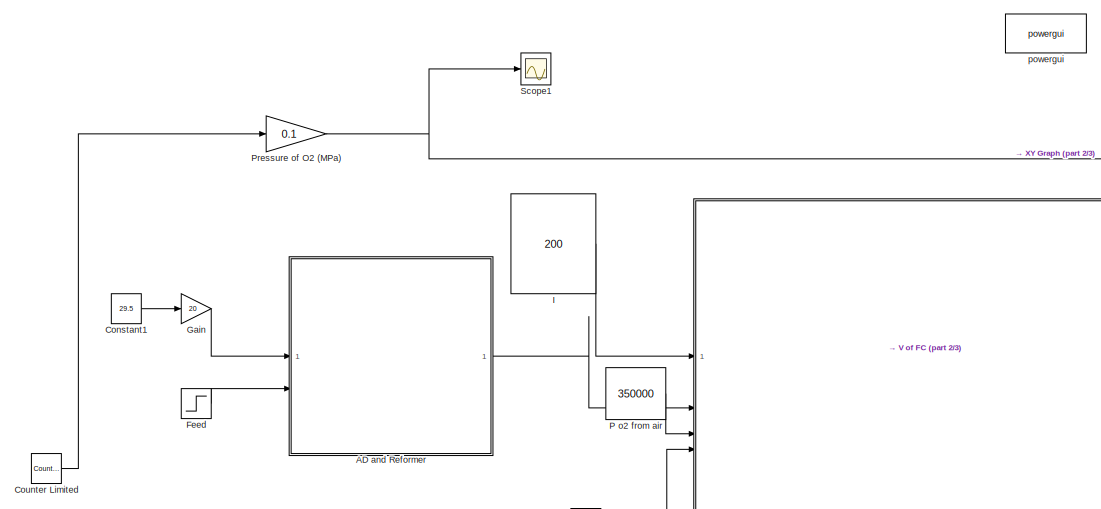
[diagram: root canvas - part 1/3, left side, full height]
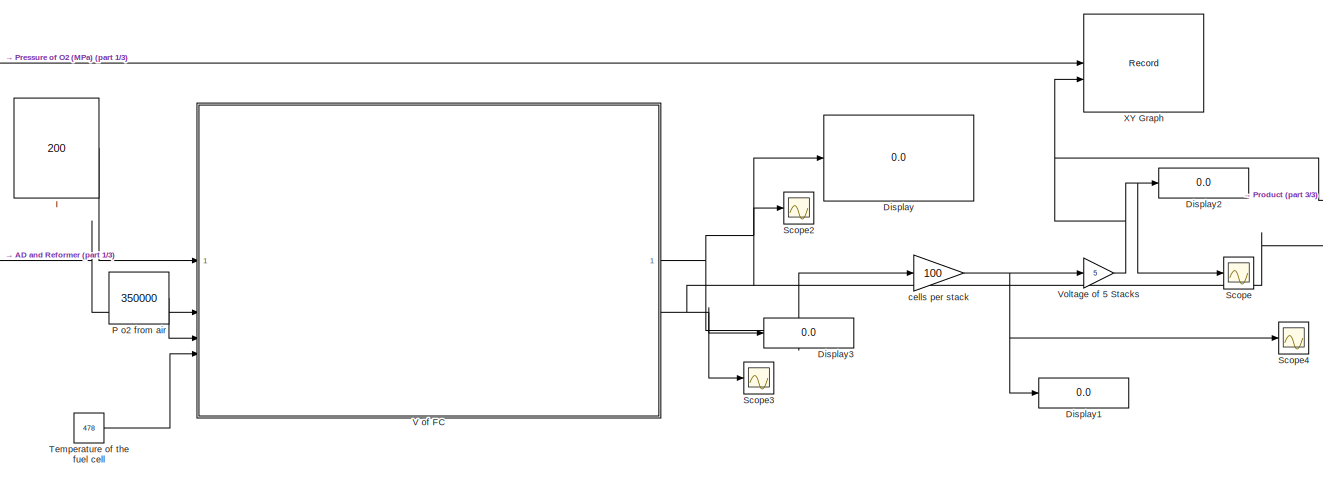
[diagram: root canvas - part 2/3, center side, full height]
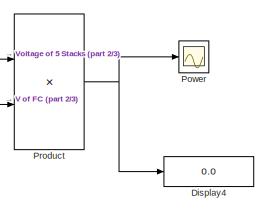
[diagram: root canvas - part 3/3, middle right region]
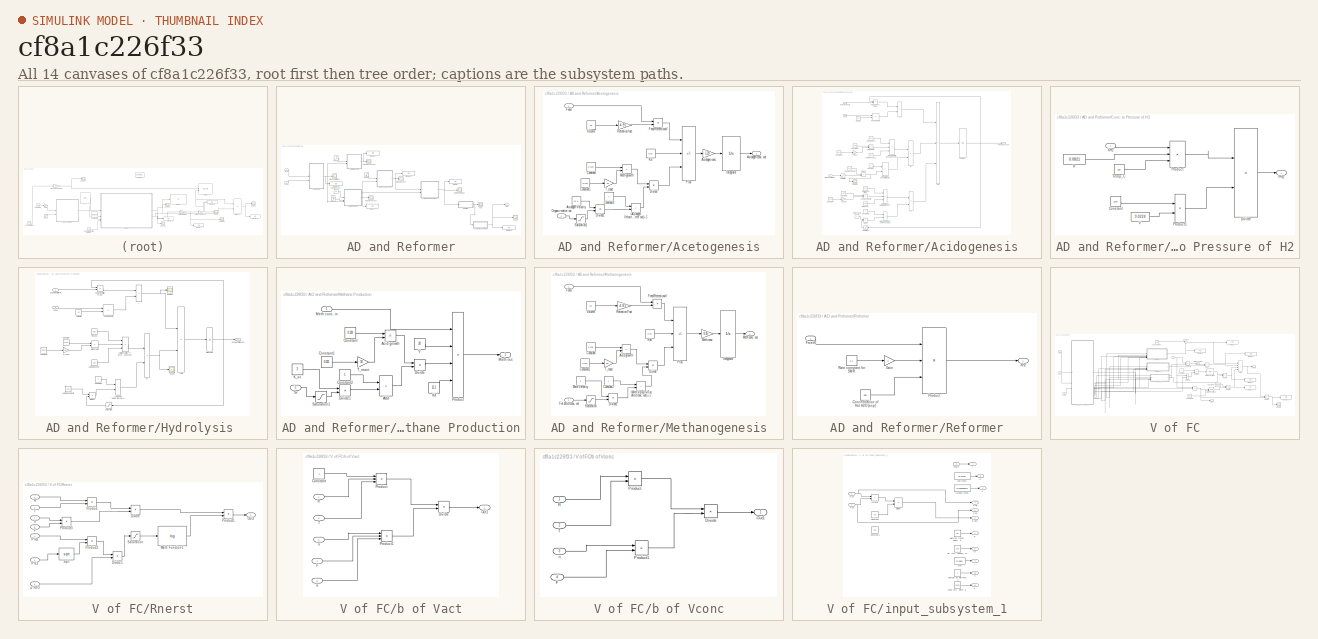
[diagram: thumbnail index - all 14 canvases of the model, root first then tree order]
MODEL slx_cf8a1c226f33
KIND model
CONFIG AbsTol = auto
CONFIG EnableMultiTasking = off
CONFIG FixedStep = auto
CONFIG MaxStep = auto
CONFIG MinStep = auto
CONFIG RelTol = 1e-3
CONFIG SampleTimeConstraint = Unconstrained
CONFIG SolverName = VariableStepAuto
CONFIG StartTime = 0.0
CONFIG StopTime = 10
BLOCK [SubSystem] AD and Reformer
BLOCK [SubSystem] AD and Reformer/Acetogenesis
BLOCK [Sum] AD and Reformer/Acetogenesis/(Acidogen Velocity//Organic matter out)+1
  IconShape = rectangular
BLOCK [Constant] AD and Reformer/Acetogenesis/Acidogen Velocity
  Value = 21.5
BLOCK [Gain] AD and Reformer/Acetogenesis/Acidogen conc.
  Gain = 1.20
BLOCK [Outport] AD and Reformer/Acetogenesis/Acidogen conc. out
BLOCK [Constant] AD and Reformer/Acetogenesis/Constant
  Value = 0.129
BLOCK [Constant] AD and Reformer/Acetogenesis/Constant1
  Value = 0.013
BLOCK [Constant] AD and Reformer/Acetogenesis/Constant2
BLOCK [Product] AD and Reformer/Acetogenesis/Divide
  Inputs = */
BLOCK [Product] AD and Reformer/Acetogenesis/Divide1
  Inputs = */
BLOCK [Inport] AD and Reformer/Acetogenesis/Feed
BLOCK [Product] AD and Reformer/Acetogenesis/Feed//RetentionxV
  Inputs = */
BLOCK [Integrator] AD and Reformer/Acetogenesis/Integrator
BLOCK [Constant] AD and Reformer/Acetogenesis/Kd
  Value = 0.02
BLOCK [Sum] AD and Reformer/Acetogenesis/Meth growth
  IconShape = rectangular
  Inputs = -+
BLOCK [Inport] AD and Reformer/Acetogenesis/Organic matter out
  Port = 2
BLOCK [Sum] AD and Reformer/Acetogenesis/Plus
  IconShape = rectangular
  Inputs = --+
BLOCK [Gain] AD and Reformer/Acetogenesis/Retention fact
  Gain = 4.91
BLOCK [Saturate] AD and Reformer/Acetogenesis/Saturation1
  LowerLimit = 0.3
  UpperLimit = 300
BLOCK [Gain] AD and Reformer/Acetogenesis/T_react
  Gain = 50
BLOCK [Constant] AD and Reformer/Acetogenesis/Volume
  Value = 20
BLOCK [Scope] AD and Reformer/Acidogen conc. out
  Floating = off
  NumInputPorts = 1
  ScopeSpecificationString = Simulink.scopes.TimeScopeBlockCfg('CurrentConfiguration', extmgr.ConfigurationSet(extmgr.Configuration('Core','General UI',true),extmgr.Configuration('Core','Source UI',true),extmgr.Configuration('Sources','WiredSimulink',true,'DataLoggingVariableName','ScopeData3'),extmgr.Configuration('Visuals','Time Domain',true,'SerializedDisplays',{struct('MinYLimReal','-0.50968','MaxYLimReal','4.42527','YLab...<+1415ch>
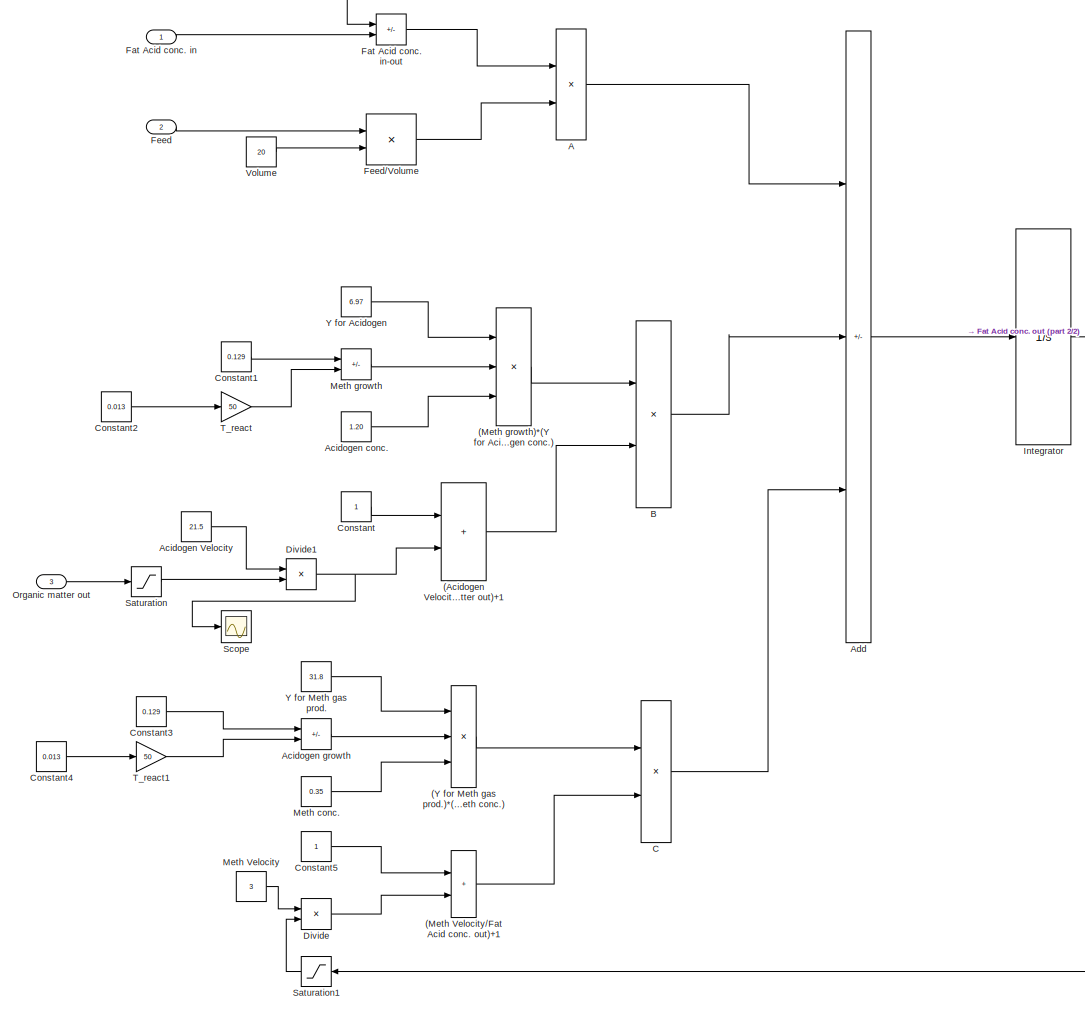
[diagram: AD and Reformer/Acidogenesis - part 1/2, most of the canvas]
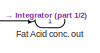
[diagram: AD and Reformer/Acidogenesis - part 2/2, middle right region]
BLOCK [SubSystem] AD and Reformer/Acidogenesis
BLOCK [Sum] AD and Reformer/Acidogenesis/(Acidogen Velocity//Organic matter out)+1
  IconShape = rectangular
BLOCK [Sum] AD and Reformer/Acidogenesis/(Meth Velocity//Fat Acid conc. out)+1
  IconShape = rectangular
BLOCK [Product] AD and Reformer/Acidogenesis/(Meth growth)*(Y for Acidogen)*(Acidogen conc.)
  Inputs = 3
BLOCK [Product] AD and Reformer/Acidogenesis/(Y for Meth gas prod.)*(Acid growth)*(Meth conc.)
  Inputs = 3
BLOCK [Product] AD and Reformer/Acidogenesis/A
BLOCK [Constant] AD and Reformer/Acidogenesis/Acidogen Velocity
  Value = 21.5
BLOCK [Constant] AD and Reformer/Acidogenesis/Acidogen conc.
  Value = 1.20
BLOCK [Sum] AD and Reformer/Acidogenesis/Acidogen growth
  IconShape = rectangular
  Inputs = -+
BLOCK [Sum] AD and Reformer/Acidogenesis/Add
  IconShape = rectangular
  Inputs = ++-
BLOCK [Product] AD and Reformer/Acidogenesis/B
  Inputs = */
BLOCK [Product] AD and Reformer/Acidogenesis/C
  Inputs = */
BLOCK [Constant] AD and Reformer/Acidogenesis/Constant
BLOCK [Constant] AD and Reformer/Acidogenesis/Constant1
  Value = 0.129
BLOCK [Constant] AD and Reformer/Acidogenesis/Constant2
  Value = 0.013
BLOCK [Constant] AD and Reformer/Acidogenesis/Constant3
  Value = 0.129
BLOCK [Constant] AD and Reformer/Acidogenesis/Constant4
  Value = 0.013
BLOCK [Constant] AD and Reformer/Acidogenesis/Constant5
BLOCK [Product] AD and Reformer/Acidogenesis/Divide
  Inputs = */
BLOCK [Product] AD and Reformer/Acidogenesis/Divide1
  Inputs = */
BLOCK [Inport] AD and Reformer/Acidogenesis/Fat Acid conc. in
BLOCK [Sum] AD and Reformer/Acidogenesis/Fat Acid conc. in-out
  IconShape = rectangular
  Inputs = -+
BLOCK [Outport] AD and Reformer/Acidogenesis/Fat Acid conc. out
BLOCK [Inport] AD and Reformer/Acidogenesis/Feed
  Port = 2
BLOCK [Product] AD and Reformer/Acidogenesis/Feed//Volume
  Inputs = */
BLOCK [Integrator] AD and Reformer/Acidogenesis/Integrator
BLOCK [Constant] AD and Reformer/Acidogenesis/Meth Velocity
  Value = 3
BLOCK [Constant] AD and Reformer/Acidogenesis/Meth conc.
  Value = 0.35
BLOCK [Sum] AD and Reformer/Acidogenesis/Meth growth
  IconShape = rectangular
  Inputs = -+
BLOCK [Inport] AD and Reformer/Acidogenesis/Organic matter out
  Port = 3
BLOCK [Saturate] AD and Reformer/Acidogenesis/Saturation
  LowerLimit = 0.002
  UpperLimit = 100
BLOCK [Saturate] AD and Reformer/Acidogenesis/Saturation1
  LowerLimit = 0.3
  UpperLimit = 300
BLOCK [Scope] AD and Reformer/Acidogenesis/Scope
  Floating = off
  NumInputPorts = 1
  ScopeSpecificationString = Simulink.scopes.TimeScopeBlockCfg('CurrentConfiguration', extmgr.ConfigurationSet(extmgr.Configuration('Core','General UI',true),extmgr.Configuration('Core','Source UI',true),extmgr.Configuration('Sources','WiredSimulink',true,'DataLoggingVariableName','ScopeData1'),extmgr.Configuration('Visuals','Time Domain',true,'SerializedDisplays',{struct('MinYLimReal','-1343.50812','MaxYLimReal','12093.72313...<+1392ch>
BLOCK [Gain] AD and Reformer/Acidogenesis/T_react
  Gain = 50
BLOCK [Gain] AD and Reformer/Acidogenesis/T_react1
  Gain = 50
BLOCK [Constant] AD and Reformer/Acidogenesis/Volume
  Value = 20
BLOCK [Constant] AD and Reformer/Acidogenesis/Y for Acidogen
  Value = 6.97
BLOCK [Constant] AD and Reformer/Acidogenesis/Y for Meth gas prod.
  Value = 31.8
BLOCK [SubSystem] AD and Reformer/Conc. to Pressure of H2
BLOCK [Constant] AD and Reformer/Conc. to Pressure of H2/Constant
  Value = 1000
BLOCK [Product] AD and Reformer/Conc. to Pressure of H2/Divide
  Inputs = */
BLOCK [Outport] AD and Reformer/Conc. to Pressure of H2/PH2
BLOCK [Product] AD and Reformer/Conc. to Pressure of H2/Product
  Inputs = 3
BLOCK [Product] AD and Reformer/Conc. to Pressure of H2/Product1
BLOCK [Constant] AD and Reformer/Conc. to Pressure of H2/R
  Value = 0.0821
BLOCK [Constant] AD and Reformer/Conc. to Pressure of H2/Temp_C
  Value = 380
BLOCK [Constant] AD and Reformer/Conc. to Pressure of H2/V
  Value = 0.0224
BLOCK [Inport] AD and Reformer/Conc. to Pressure of H2/XH2
BLOCK [Display] AD and Reformer/Display
  Decimation = 1
BLOCK [Display] AD and Reformer/Display1
  Decimation = 1
BLOCK [Display] AD and Reformer/Display2
  Decimation = 1
BLOCK [Display] AD and Reformer/Display3
  Decimation = 1
BLOCK [Display] AD and Reformer/Display4
  Decimation = 1
BLOCK [Display] AD and Reformer/Display5
  Decimation = 1
BLOCK [Scope] AD and Reformer/Fat Acid conc. out
  Floating = off
  NumInputPorts = 1
  ScopeSpecificationString = Simulink.scopes.TimeScopeBlockCfg('CurrentConfiguration', extmgr.ConfigurationSet(extmgr.Configuration('Core','General UI',true),extmgr.Configuration('Core','Source UI',true),extmgr.Configuration('Sources','WiredSimulink',true,'DataLoggingVariableName','ScopeData4'),extmgr.Configuration('Visuals','Time Domain',true,'SerializedDisplays',{struct('MinYLimReal','-1.15241','MaxYLimReal','4.98381','YLab...<+1421ch>
BLOCK [Constant] AD and Reformer/Fat Acids conc.
  Value = 2.91
BLOCK [Inport] AD and Reformer/Feed
  Port = 2
BLOCK [Step] AD and Reformer/Feed1
  SampleTime = 0
BLOCK [Step] AD and Reformer/Feed2
  SampleTime = 0
BLOCK [Step] AD and Reformer/Feed3
  SampleTime = 0
BLOCK [SubSystem] AD and Reformer/Hydrolysis 
BLOCK [Sum] AD and Reformer/Hydrolysis /(Acidogen Velocity//Organic matter out)+1
  IconShape = rectangular
BLOCK [Product] AD and Reformer/Hydrolysis /(Meth growth)*(Y for Hyd)*(Acidogen conc.)
  Inputs = 3
BLOCK [Product] AD and Reformer/Hydrolysis /A
BLOCK [Constant] AD and Reformer/Hydrolysis /Acidogen Velocity
  Value = 21.5
BLOCK [Constant] AD and Reformer/Hydrolysis /Acidogen conc.
  Value = 1.20
BLOCK [Sum] AD and Reformer/Hydrolysis /Add
  IconShape = rectangular
  Inputs = +-
BLOCK [Product] AD and Reformer/Hydrolysis /B
  Inputs = */
BLOCK [Constant] AD and Reformer/Hydrolysis /Constant
  Value = 0.129
BLOCK [Constant] AD and Reformer/Hydrolysis /Constant1
  Value = 0.013
BLOCK [Constant] AD and Reformer/Hydrolysis /Constant2
BLOCK [Product] AD and Reformer/Hydrolysis /Divide1
  Inputs = */
BLOCK [Inport] AD and Reformer/Hydrolysis /Feed
  Port = 2
BLOCK [Product] AD and Reformer/Hydrolysis /Feed//Volume
  Inputs = */
BLOCK [Integrator] AD and Reformer/Hydrolysis /Integrator
BLOCK [Sum] AD and Reformer/Hydrolysis /Meth growth
  IconShape = rectangular
  Inputs = -+
BLOCK [Inport] AD and Reformer/Hydrolysis /Organic Matter in
BLOCK [Sum] AD and Reformer/Hydrolysis /Organic matter in-out
  IconShape = rectangular
  Inputs = -+
BLOCK [Outport] AD and Reformer/Hydrolysis /Organic matter out
BLOCK [Saturate] AD and Reformer/Hydrolysis /Saturation
  LowerLimit = 0.3
  UpperLimit = 300
BLOCK [Scope] AD and Reformer/Hydrolysis /Scope
  Floating = off
  NumInputPorts = 1
  ScopeSpecificationString = Simulink.scopes.TimeScopeBlockCfg('CurrentConfiguration', extmgr.ConfigurationSet(extmgr.Configuration('Core','General UI',true),extmgr.Configuration('Core','Source UI',true),extmgr.Configuration('Sources','WiredSimulink',true,'DataLoggingVariableName','ScopeData3'),extmgr.Configuration('Visuals','Time Domain',true,'SerializedDisplays',{struct('MinYLimReal','-0.58078','MaxYLimReal','6.0581','YLabe...<+1356ch>
BLOCK [Scope] AD and Reformer/Hydrolysis /Scope1
  Floating = off
  NumInputPorts = 1
  ScopeSpecificationString = Simulink.scopes.TimeScopeBlockCfg('CurrentConfiguration', extmgr.ConfigurationSet(extmgr.Configuration('Core','General UI',true),extmgr.Configuration('Core','Source UI',true),extmgr.Configuration('Sources','WiredSimulink',true,'DataLoggingVariableName','ScopeData4'),extmgr.Configuration('Visuals','Time Domain',true,'SerializedDisplays',{struct('MinYLimReal','-3.68802','MaxYLimReal','33.19218','YLa...<+1364ch>
BLOCK [Gain] AD and Reformer/Hydrolysis /T_react
  Gain = 50
BLOCK [Constant] AD and Reformer/Hydrolysis /Volume
  Value = 20
BLOCK [Constant] AD and Reformer/Hydrolysis /Y for Hyd
  Value = 9.66
BLOCK [Scope] AD and Reformer/Meth conc. out
  Floating = off
  NumInputPorts = 1
  ScopeSpecificationString = Simulink.scopes.TimeScopeBlockCfg('CurrentConfiguration', extmgr.ConfigurationSet(extmgr.Configuration('Core','General UI',true),extmgr.Configuration('Core','Source UI',true),extmgr.Configuration('Sources','WiredSimulink',true,'DataLoggingVariableName','ScopeData5'),extmgr.Configuration('Visuals','Time Domain',true,'SerializedDisplays',{struct('MinYLimReal','-0.08379','MaxYLimReal','0.75413','YLab...<+1421ch>
BLOCK [SubSystem] AD and Reformer/Methane Production
BLOCK [Sum] AD and Reformer/Methane Production/Acid growth
  IconShape = rectangular
  Inputs = -+
BLOCK [Sum] AD and Reformer/Methane Production/Add
  IconShape = rectangular
BLOCK [Constant] AD and Reformer/Methane Production/Constant
  Value = 0.129
BLOCK [Constant] AD and Reformer/Methane Production/Constant1
  Value = 0.013
BLOCK [Constant] AD and Reformer/Methane Production/Constant2
BLOCK [Product] AD and Reformer/Methane Production/Divide
  Inputs = */
BLOCK [Product] AD and Reformer/Methane Production/Divide1
  Inputs = */
BLOCK [Constant] AD and Reformer/Methane Production/K4
  Value = 15.1
BLOCK [Constant] AD and Reformer/Methane Production/K_sc
  Value = 3
BLOCK [Inport] AD and Reformer/Methane Production/Meth conc. in
BLOCK [Outport] AD and Reformer/Methane Production/Meth out
BLOCK [Product] AD and Reformer/Methane Production/Product
  Inputs = 4
BLOCK [Saturate] AD and Reformer/Methane Production/Saturation1
  LowerLimit = 0.3
  UpperLimit = 100
BLOCK [Inport] AD and Reformer/Methane Production/Sv
  Port = 2
BLOCK [Gain] AD and Reformer/Methane Production/T_react
  Gain = 50
BLOCK [Constant] AD and Reformer/Methane Production/V
  Value = 20
BLOCK [Scope] AD and Reformer/Methane output
  Floating = off
  NumInputPorts = 1
  ScopeSpecificationString = Simulink.scopes.TimeScopeBlockCfg('CurrentConfiguration', extmgr.ConfigurationSet(extmgr.Configuration('Core','General UI',true),extmgr.Configuration('Core','Source UI',true),extmgr.Configuration('Sources','WiredSimulink',true,'DataLoggingVariableName','ScopeData6'),extmgr.Configuration('Visuals','Time Domain',true,'SerializedDisplays',{struct('MinYLimReal','-7.8175','MaxYLimReal','70.35749','YLab...<+1411ch>
BLOCK [SubSystem] AD and Reformer/Methanogenesis
BLOCK [Sum] AD and Reformer/Methanogenesis/(Meth Velocity//Fat Acid conc. out)+1
  IconShape = rectangular
BLOCK [Sum] AD and Reformer/Methanogenesis/Acid growth
  IconShape = rectangular
  Inputs = -+
BLOCK [Constant] AD and Reformer/Methanogenesis/Constant
  Value = 0.129
BLOCK [Constant] AD and Reformer/Methanogenesis/Constant1
  Value = 0.013
BLOCK [Constant] AD and Reformer/Methanogenesis/Constant2
BLOCK [Product] AD and Reformer/Methanogenesis/Divide
  Inputs = */
BLOCK [Product] AD and Reformer/Methanogenesis/Divide1
  Inputs = */
BLOCK [Inport] AD and Reformer/Methanogenesis/Fat Acid conc. out
  Port = 2
BLOCK [Inport] AD and Reformer/Methanogenesis/Feed
BLOCK [Product] AD and Reformer/Methanogenesis/Feed//RetentionxV 
  Inputs = */
BLOCK [Integrator] AD and Reformer/Methanogenesis/Integrator
BLOCK [Constant] AD and Reformer/Methanogenesis/Kdc
  Value = 0.02
BLOCK [Constant] AD and Reformer/Methanogenesis/Meth Velocity
  Value = 3
BLOCK [Gain] AD and Reformer/Methanogenesis/Meth conc.
  Gain = 0.35
BLOCK [Outport] AD and Reformer/Methanogenesis/Meth conc. out
BLOCK [Sum] AD and Reformer/Methanogenesis/Plus
  IconShape = rectangular
  Inputs = --+
BLOCK [Gain] AD and Reformer/Methanogenesis/Retention Fact
  Gain = 4.91
BLOCK [Saturate] AD and Reformer/Methanogenesis/Saturation
  LowerLimit = 0.3
  UpperLimit = 300
BLOCK [Gain] AD and Reformer/Methanogenesis/T_react
  Gain = 50
BLOCK [Constant] AD and Reformer/Methanogenesis/Volume
  Value = 20
BLOCK [Scope] AD and Reformer/Organic matter out
  Floating = off
  NumInputPorts = 1
  ScopeSpecificationString = Simulink.scopes.TimeScopeBlockCfg('CurrentConfiguration', extmgr.ConfigurationSet(extmgr.Configuration('Core','General UI',true),extmgr.Configuration('Core','Source UI',true),extmgr.Configuration('Sources','WiredSimulink',true,'DataLoggingVariableName','ScopeData7'),extmgr.Configuration('Visuals','Time Domain',true,'SerializedDisplays',{struct('MinYLimReal','-22.56187','MaxYLimReal','202.2257','YL...<+1432ch>
BLOCK [Outport] AD and Reformer/PH2
BLOCK [Scope] AD and Reformer/PH_2
  Floating = off
  NumInputPorts = 1
  ScopeSpecificationString = Simulink.scopes.TimeScopeBlockCfg('CurrentConfiguration', extmgr.ConfigurationSet(extmgr.Configuration('Core','General UI',true),extmgr.Configuration('Core','Source UI',true),extmgr.Configuration('Sources','WiredSimulink',true,'DataLoggingVariableName','ScopeData2'),extmgr.Configuration('Visuals','Time Domain',true,'SerializedDisplays',{struct('MinYLimReal','-67222.26916','MaxYLimReal','605000.422...<+1412ch>
BLOCK [SubSystem] AD and Reformer/Reformer
BLOCK [Constant] AD and Reformer/Reformer/Concentration of Hot H2O (exp)
  Value = 980
BLOCK [Inport] AD and Reformer/Reformer/Fmeth
BLOCK [Gain] AD and Reformer/Reformer/Gain
  Gain = 3
BLOCK [Product] AD and Reformer/Reformer/Product
  Inputs = 3
BLOCK [Constant] AD and Reformer/Reformer/Rate constant for SMR
  Value = 2.1
BLOCK [Outport] AD and Reformer/Reformer/XH2
BLOCK [Inport] AD and Reformer/Sb_in
BLOCK [Scope] AD and Reformer/XH2
  Floating = off
  NumInputPorts = 1
  ScopeSpecificationString = Simulink.scopes.TimeScopeBlockCfg('CurrentConfiguration', extmgr.ConfigurationSet(extmgr.Configuration('Core','General UI',true),extmgr.Configuration('Core','Source UI',true),extmgr.Configuration('Sources','WiredSimulink',true,'DataLoggingVariableName','ScopeData1'),extmgr.Configuration('Visuals','Time Domain',true),extmgr.Configuration('Tools','Plot Navigation',true),extmgr.Configuration('Tools',...<+40ch>
BLOCK [Constant] Constant1
  Value = 29.5
BLOCK [Reference] Counter Limited  REF=simulink/Sources/Counter
Limited
  SourceBlock = simulink/Sources/Counter\nLimited
  SourceType = Counter Limited
BLOCK [Display] Display
  Decimation = 1
  Format = long
BLOCK [Display] Display1
  Decimation = 1
BLOCK [Display] Display2
  Decimation = 1
BLOCK [Display] Display3
  Decimation = 1
BLOCK [Display] Display4
  Decimation = 1
BLOCK [Step] Feed
  SampleTime = 0
BLOCK [Gain] Gain
  Gain = 20
BLOCK [Constant] I
  Value = 200
BLOCK [Constant] P o2 from air
  Value = 350000
BLOCK [Scope] Power
  Floating = off
  NumInputPorts = 1
  ScopeSpecificationString = Simulink.scopes.TimeScopeBlockCfg('CurrentConfiguration', extmgr.ConfigurationSet(extmgr.Configuration('Core','General UI',true),extmgr.Configuration('Core','Source UI',true),extmgr.Configuration('Sources','WiredSimulink',true,'DataLoggingVariableName','ScopeData1'),extmgr.Configuration('Visuals','Time Domain',true,'SerializedDisplays',{struct('MinYLimReal','17227.57244','MaxYLimReal','23300.02678...<+1396ch>
BLOCK [Gain] Pressure of O2 (MPa)
  Gain = 0.1
BLOCK [Product] Product
BLOCK [Scope] Scope
  Floating = off
  NumInputPorts = 1
  ScopeSpecificationString = Simulink.scopes.TimeScopeBlockCfg('CurrentConfiguration', extmgr.ConfigurationSet(extmgr.Configuration('Core','General UI',true),extmgr.Configuration('Core','Source UI',true),extmgr.Configuration('Sources','WiredSimulink',true,'DataLoggingVariableName','ScopeData1'),extmgr.Configuration('Visuals','Time Domain',true,'SerializedDisplays',{struct('MinYLimReal','441.73263','MaxYLimReal','597.43658','Y...<+1392ch>
BLOCK [Scope] Scope1
  Floating = off
  NumInputPorts = 1
  ScopeSpecificationString = Simulink.scopes.TimeScopeBlockCfg('CurrentConfiguration', extmgr.ConfigurationSet(extmgr.Configuration('Core','General UI',true),extmgr.Configuration('Core','Source UI',true),extmgr.Configuration('Sources','WiredSimulink',true,'DataLoggingVariableName','ScopeData1'),extmgr.Configuration('Visuals','Time Domain',true,'SerializedDisplays',{struct('MinYLimReal','-0.62561','MaxYLimReal','5.63049','YLab...<+1379ch>
BLOCK [Scope] Scope2
  Floating = off
  NumInputPorts = 1
  ScopeSpecificationString = Simulink.scopes.TimeScopeBlockCfg('CurrentConfiguration', extmgr.ConfigurationSet(extmgr.Configuration('Core','General UI',true),extmgr.Configuration('Core','Source UI',true),extmgr.Configuration('Sources','WiredSimulink',true,'DataLoggingVariableName','ScopeData2'),extmgr.Configuration('Visuals','Time Domain',true,'SerializedDisplays',{struct('MinYLimReal','0.88347','MaxYLimReal','1.19487','YLabe...<+1366ch>
BLOCK [Scope] Scope3
  Floating = off
  NumInputPorts = 1
  ScopeSpecificationString = Simulink.scopes.TimeScopeBlockCfg('CurrentConfiguration', extmgr.ConfigurationSet(extmgr.Configuration('Core','General UI',true),extmgr.Configuration('Core','Source UI',true),extmgr.Configuration('Sources','WiredSimulink',true,'DataLoggingVariableName','ScopeData3'),extmgr.Configuration('Visuals','Time Domain',true,'SerializedDisplays',{struct('MinYLimReal','29.00000','MaxYLimReal','49.00000','YLa...<+1409ch>
BLOCK [Scope] Scope4
  Floating = off
  NumInputPorts = 1
  ScopeSpecificationString = Simulink.scopes.TimeScopeBlockCfg('CurrentConfiguration', extmgr.ConfigurationSet(extmgr.Configuration('Core','General UI',true),extmgr.Configuration('Core','Source UI',true),extmgr.Configuration('Sources','WiredSimulink',true,'DataLoggingVariableName','ScopeData4'),extmgr.Configuration('Visuals','Time Domain',true,'SerializedDisplays',{struct('MinYLimReal','88.34653','MaxYLimReal','119.48732','YL...<+1384ch>
BLOCK [Constant] Temperature of the fuel cell
  Value = 478
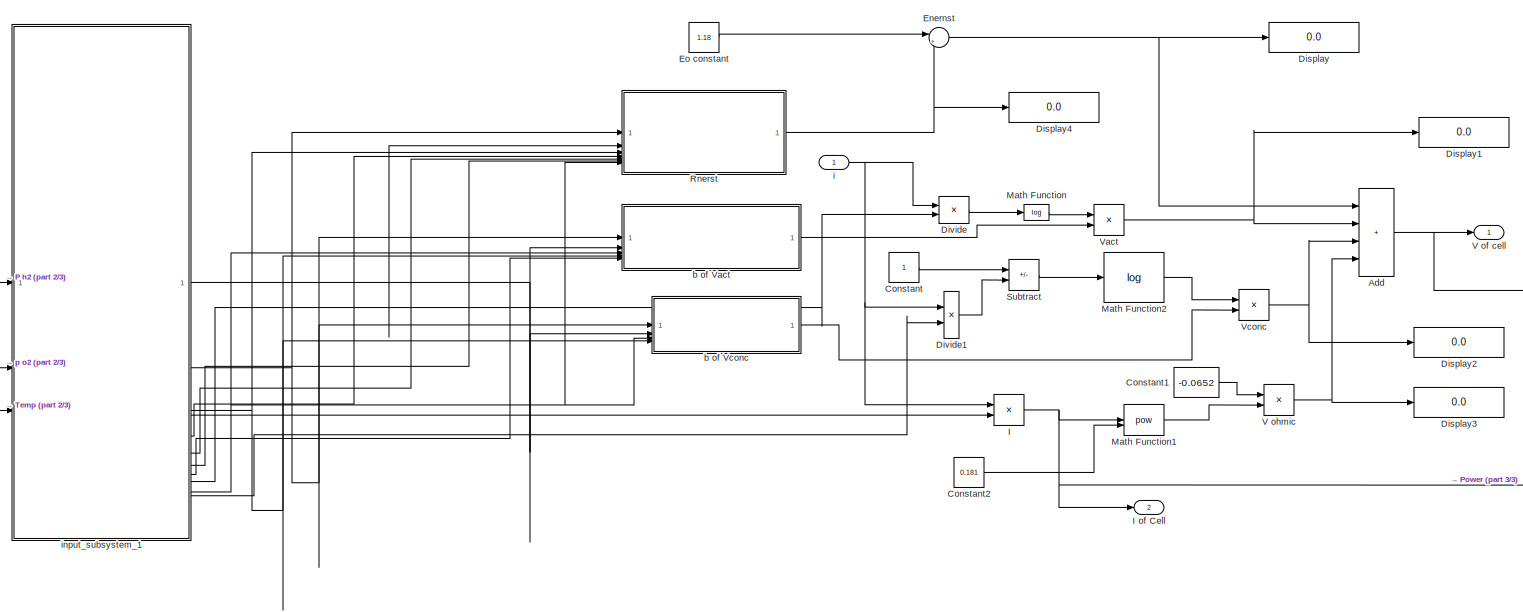
[diagram: V of FC - part 1/3, most of the canvas]
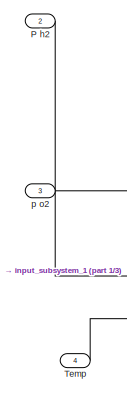
[diagram: V of FC - part 2/3, middle left region]
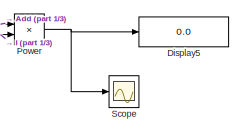
[diagram: V of FC - part 3/3, bottom right region]
BLOCK [SubSystem] V of FC
BLOCK [Sum] V of FC/Add
  IconShape = rectangular
  Inputs = ++++
BLOCK [Constant] V of FC/Constant
BLOCK [Constant] V of FC/Constant1
  Value = -0.0652
BLOCK [Constant] V of FC/Constant2
  Value = 0.181
BLOCK [Display] V of FC/Display
  Decimation = 1
BLOCK [Display] V of FC/Display1
  Decimation = 1
BLOCK [Display] V of FC/Display2
  Decimation = 1
BLOCK [Display] V of FC/Display3
  Decimation = 1
BLOCK [Display] V of FC/Display4
  Decimation = 1
BLOCK [Display] V of FC/Display5
  Decimation = 1
BLOCK [Product] V of FC/Divide
  Inputs = */
BLOCK [Product] V of FC/Divide1
  Inputs = */
BLOCK [Sum] V of FC/Enernst
  Inputs = |++
  NameLocation = top
BLOCK [Constant] V of FC/Eo constant 
  Value = 1.18
BLOCK [Product] V of FC/I
BLOCK [Outport] V of FC/I of Cell
  Port = 2
BLOCK [Math] V of FC/Math Function
  Operator = log
BLOCK [Math] V of FC/Math Function1
  Operator = pow
BLOCK [Math] V of FC/Math Function2
  Operator = log
BLOCK [Inport] V of FC/P h2
  Port = 2
BLOCK [Product] V of FC/Power
BLOCK [SubSystem] V of FC/Rnerst
BLOCK [Product] V of FC/Rnerst/Divide
  Inputs = */
BLOCK [Product] V of FC/Rnerst/Divide1
  Inputs = */
BLOCK [Inport] V of FC/Rnerst/F
  Port = 3
BLOCK [Math] V of FC/Rnerst/Math Function1
  Operator = log
BLOCK [Outport] V of FC/Rnerst/Out2
BLOCK [Inport] V of FC/Rnerst/P H2
  Port = 4
BLOCK [Inport] V of FC/Rnerst/P o2
  Port = 5
BLOCK [Product] V of FC/Rnerst/Product
BLOCK [Product] V of FC/Rnerst/Product1
BLOCK [Product] V of FC/Rnerst/Product2
BLOCK [Product] V of FC/Rnerst/Product3
BLOCK [Inport] V of FC/Rnerst/R
BLOCK [Saturate] V of FC/Rnerst/Saturation
  LowerLimit = 0.005
  UpperLimit = 100000000
BLOCK [Sqrt] V of FC/Rnerst/Sqrt
BLOCK [Inport] V of FC/Rnerst/T
  Port = 2
BLOCK [Inport] V of FC/Rnerst/n
  Port = 7
BLOCK [Inport] V of FC/Rnerst/p H2O
  Port = 6
BLOCK [Scope] V of FC/Scope
  Floating = off
  NumInputPorts = 1
  ScopeSpecificationString = Simulink.scopes.TimeScopeBlockCfg('CurrentConfiguration', extmgr.ConfigurationSet(extmgr.Configuration('Core','General UI',true),extmgr.Configuration('Core','Source UI',true),extmgr.Configuration('Sources','WiredSimulink',true,'DataLoggingVariableName','ScopeData2'),extmgr.Configuration('Visuals','Time Domain',true),extmgr.Configuration('Tools','Plot Navigation',true),extmgr.Configuration('Tools',...<+58ch>
BLOCK [Sum] V of FC/Subtract
  IconShape = rectangular
  Inputs = +-
BLOCK [Inport] V of FC/Temp
  Port = 4
BLOCK [Outport] V of FC/V of cell
BLOCK [Product] V of FC/V ohmic
BLOCK [Product] V of FC/Vact
BLOCK [Product] V of FC/Vconc
BLOCK [SubSystem] V of FC/b of Vact
BLOCK [Constant] V of FC/b of Vact/Constant
  Value = -1
BLOCK [Product] V of FC/b of Vact/Divide
  Inputs = */
BLOCK [Inport] V of FC/b of Vact/F
  Port = 4
BLOCK [Outport] V of FC/b of Vact/Out1
BLOCK [Product] V of FC/b of Vact/Product
  Inputs = 3
BLOCK [Product] V of FC/b of Vact/Product1
  Inputs = 3
BLOCK [Inport] V of FC/b of Vact/R
BLOCK [Inport] V of FC/b of Vact/T
  Port = 2
BLOCK [Inport] V of FC/b of Vact/a
  Port = 5
BLOCK [Inport] V of FC/b of Vact/n
  Port = 3
BLOCK [SubSystem] V of FC/b of Vconc
BLOCK [Product] V of FC/b of Vconc/Divide
  Inputs = */
BLOCK [Inport] V of FC/b of Vconc/F
  Port = 4
BLOCK [Outport] V of FC/b of Vconc/Out1
BLOCK [Product] V of FC/b of Vconc/Product
BLOCK [Product] V of FC/b of Vconc/Product1
BLOCK [Inport] V of FC/b of Vconc/R
BLOCK [Inport] V of FC/b of Vconc/T
  Port = 2
BLOCK [Inport] V of FC/b of Vconc/n
  Port = 3
BLOCK [Inport] V of FC/i 
BLOCK [SubSystem] V of FC/input_subsystem_1
BLOCK [Outport] V of FC/input_subsystem_1/A
  Port = 9
BLOCK [Constant] V of FC/input_subsystem_1/Area
  Value = 0.1950
BLOCK [Constant] V of FC/input_subsystem_1/Constant
  Value = 2.5
BLOCK [Constant] V of FC/input_subsystem_1/Constant1
  Value = 0.5
BLOCK [Product] V of FC/input_subsystem_1/Divide
  Inputs = */
BLOCK [Constant] V of FC/input_subsystem_1/Ex. curr. density, i0
  Value = 100
BLOCK [Outport] V of FC/input_subsystem_1/F
  Port = 3
BLOCK [Outport] V of FC/input_subsystem_1/Io
  Port = 8
BLOCK [Constant] V of FC/input_subsystem_1/Limit curr. dens. iL
  Value = 3590
BLOCK [Constant] V of FC/input_subsystem_1/Number of eletrons, n
  Value = 2
BLOCK [Outport] V of FC/input_subsystem_1/P H2
  Port = 4
BLOCK [Outport] V of FC/input_subsystem_1/P o2
  Port = 5
BLOCK [Sum] V of FC/input_subsystem_1/P total
  IconShape = rectangular
BLOCK [Outport] V of FC/input_subsystem_1/R
  Port = 2
BLOCK [Outport] V of FC/input_subsystem_1/T
BLOCK [Inport] V of FC/input_subsystem_1/Temp
  Port = 3
BLOCK [Outport] V of FC/input_subsystem_1/a
  Port = 7
BLOCK [Constant] V of FC/input_subsystem_1/electron transf. coeff. a
  Value = 0.5
BLOCK [Constant] V of FC/input_subsystem_1/faraday const.
  Value = 9.648456e+4
BLOCK [Constant] V of FC/input_subsystem_1/gas const.
  Value = 8.31441
BLOCK [Outport] V of FC/input_subsystem_1/iL
  Port = 11
BLOCK [Outport] V of FC/input_subsystem_1/n
  Port = 10
BLOCK [Outport] V of FC/input_subsystem_1/p H2O
  Port = 6
BLOCK [Inport] V of FC/input_subsystem_1/p h2
BLOCK [Inport] V of FC/input_subsystem_1/p o2
  Port = 2
BLOCK [Inport] V of FC/p o2
  Port = 3
BLOCK [Gain] Voltage of 5 Stacks
  Gain = 5
BLOCK [Record] XY Graph
  CompatibilityTag = XY
  FileSettingsInternal = {"entries":[{"content":{"excelSettings":{"content":{},"type":"Streamout.ExcelSettings"}},"type":"Streamout.FileSettingStorage","uuid":"06980113-96f1-4b0c-a215-c6c45438d7ac"}],"packageUris":["http://schema.mathworks.com/mf0/streamout_blocks/R2020a"],"version":"1.0"}
  Layout = [1 1]
  SignalsInternal = {"entries":[{"content":{"signals":[{"content":{"blockPath":["FuelCell/XY Graph"],"dimensions":[1],"domain":"FuelCell/XY Graph","lineColor":"#a2142f","plots":[1],"port":1,"sid":[""],"signalID":456,"signalName":"Pressure of O2 (MPa)"},"type":"RecordBlkView.Signal","uuid":"e1d00316-961b-4916-b371-07965f440cbd"},{"content":{"blockPath":["FuelCell/XY Graph"],"dimensions":[1],"domain":"FuelCell/XY Graph...<+360ch>
  VisualizationBindings = {"xyplotplugin":{"info":[{"series":[{"bindingParametersList":[{"parameter":"X-Axis","signalID":456,"signalName":"Pressure of O2 (MPa)"},{"parameter":"Y-Axis","signalID":460,"signalName":"Voltage of 5 Stacks"}],"seriesID":32857}],"subplotID":1}]}}
BLOCK [Gain] cells per stack
  Gain = 100
BLOCK [Reference] powergui  REF=spspowerguiLib/powergui
  Priority = 1
  SourceBlock = spspowerguiLib/powergui
  SourceType = PSB option menu block
LINE AD and Reformer/Acetogenesis/(Acidogen Velocity//Organic matter out)+1:1 -> AD and Reformer/Acetogenesis/Divide:2
LINE AD and Reformer/Acetogenesis/Acidogen Velocity:1 -> AD and Reformer/Acetogenesis/Divide1:1
LINE AD and Reformer/Acetogenesis/Acidogen conc.:1 -> AD and Reformer/Acetogenesis/Integrator:1
LINE AD and Reformer/Acetogenesis/Constant1:1 -> AD and Reformer/Acetogenesis/T_react:1
LINE AD and Reformer/Acetogenesis/Constant2:1 -> AD and Reformer/Acetogenesis/(Acidogen Velocity//Organic matter out)+1:1
LINE AD and Reformer/Acetogenesis/Constant:1 -> AD and Reformer/Acetogenesis/Meth growth:1
LINE AD and Reformer/Acetogenesis/Divide1:1 -> AD and Reformer/Acetogenesis/(Acidogen Velocity//Organic matter out)+1:2
LINE AD and Reformer/Acetogenesis/Divide:1 -> AD and Reformer/Acetogenesis/Plus:3
LINE AD and Reformer/Acetogenesis/Feed//RetentionxV:1 -> AD and Reformer/Acetogenesis/Plus:1
LINE AD and Reformer/Acetogenesis/Feed:1 -> AD and Reformer/Acetogenesis/Feed//RetentionxV:1
LINE AD and Reformer/Acetogenesis/Integrator:1 -> AD and Reformer/Acetogenesis/Acidogen conc. out:1
LINE AD and Reformer/Acetogenesis/Kd:1 -> AD and Reformer/Acetogenesis/Plus:2
LINE AD and Reformer/Acetogenesis/Meth growth:1 -> AD and Reformer/Acetogenesis/Divide:1
LINE AD and Reformer/Acetogenesis/Organic matter out:1 -> AD and Reformer/Acetogenesis/Saturation1:1
LINE AD and Reformer/Acetogenesis/Plus:1 -> AD and Reformer/Acetogenesis/Acidogen conc.:1
LINE AD and Reformer/Acetogenesis/Retention fact:1 -> AD and Reformer/Acetogenesis/Feed//RetentionxV:2
LINE AD and Reformer/Acetogenesis/Saturation1:1 -> AD and Reformer/Acetogenesis/Divide1:2
LINE AD and Reformer/Acetogenesis/T_react:1 -> AD and Reformer/Acetogenesis/Meth growth:2
LINE AD and Reformer/Acetogenesis/Volume:1 -> AD and Reformer/Acetogenesis/Retention fact:1
NET AD and Reformer/Acetogenesis:1 -> AD and Reformer/Acidogen conc. out:1, AD and Reformer/Display1:1
LINE AD and Reformer/Acidogenesis/(Acidogen Velocity//Organic matter out)+1:1 -> AD and Reformer/Acidogenesis/B:2
LINE AD and Reformer/Acidogenesis/(Meth Velocity//Fat Acid conc. out)+1:1 -> AD and Reformer/Acidogenesis/C:2
LINE AD and Reformer/Acidogenesis/(Meth growth)*(Y for Acidogen)*(Acidogen conc.):1 -> AD and Reformer/Acidogenesis/B:1
LINE AD and Reformer/Acidogenesis/(Y for Meth gas prod.)*(Acid growth)*(Meth conc.):1 -> AD and Reformer/Acidogenesis/C:1
LINE AD and Reformer/Acidogenesis/A:1 -> AD and Reformer/Acidogenesis/Add:1
LINE AD and Reformer/Acidogenesis/Acidogen Velocity:1 -> AD and Reformer/Acidogenesis/Divide1:1
LINE AD and Reformer/Acidogenesis/Acidogen conc.:1 -> AD and Reformer/Acidogenesis/(Meth growth)*(Y for Acidogen)*(Acidogen conc.):3
LINE AD and Reformer/Acidogenesis/Acidogen growth:1 -> AD and Reformer/Acidogenesis/(Y for Meth gas prod.)*(Acid growth)*(Meth conc.):2
LINE AD and Reformer/Acidogenesis/Add:1 -> AD and Reformer/Acidogenesis/Integrator:1
LINE AD and Reformer/Acidogenesis/B:1 -> AD and Reformer/Acidogenesis/Add:2
LINE AD and Reformer/Acidogenesis/C:1 -> AD and Reformer/Acidogenesis/Add:3
LINE AD and Reformer/Acidogenesis/Constant1:1 -> AD and Reformer/Acidogenesis/Meth growth:1
LINE AD and Reformer/Acidogenesis/Constant2:1 -> AD and Reformer/Acidogenesis/T_react:1
LINE AD and Reformer/Acidogenesis/Constant3:1 -> AD and Reformer/Acidogenesis/Acidogen growth:1
LINE AD and Reformer/Acidogenesis/Constant4:1 -> AD and Reformer/Acidogenesis/T_react1:1
LINE AD and Reformer/Acidogenesis/Constant5:1 -> AD and Reformer/Acidogenesis/(Meth Velocity//Fat Acid conc. out)+1:1
LINE AD and Reformer/Acidogenesis/Constant:1 -> AD and Reformer/Acidogenesis/(Acidogen Velocity//Organic matter out)+1:1
NET AD and Reformer/Acidogenesis/Divide1:1 -> AD and Reformer/Acidogenesis/(Acidogen Velocity//Organic matter out)+1:2, AD and Reformer/Acidogenesis/Scope:1
LINE AD and Reformer/Acidogenesis/Divide:1 -> AD and Reformer/Acidogenesis/(Meth Velocity//Fat Acid conc. out)+1:2
LINE AD and Reformer/Acidogenesis/Fat Acid conc. in-out:1 -> AD and Reformer/Acidogenesis/A:1
LINE AD and Reformer/Acidogenesis/Fat Acid conc. in:1 -> AD and Reformer/Acidogenesis/Fat Acid conc. in-out:2
LINE AD and Reformer/Acidogenesis/Feed//Volume:1 -> AD and Reformer/Acidogenesis/A:2
LINE AD and Reformer/Acidogenesis/Feed:1 -> AD and Reformer/Acidogenesis/Feed//Volume:1
NET AD and Reformer/Acidogenesis/Integrator:1 -> AD and Reformer/Acidogenesis/Fat Acid conc. in-out:1, AD and Reformer/Acidogenesis/Fat Acid conc. out:1, AD and Reformer/Acidogenesis/Saturation1:1
LINE AD and Reformer/Acidogenesis/Meth Velocity:1 -> AD and Reformer/Acidogenesis/Divide:1
LINE AD and Reformer/Acidogenesis/Meth conc.:1 -> AD and Reformer/Acidogenesis/(Y for Meth gas prod.)*(Acid growth)*(Meth conc.):3
LINE AD and Reformer/Acidogenesis/Meth growth:1 -> AD and Reformer/Acidogenesis/(Meth growth)*(Y for Acidogen)*(Acidogen conc.):2
LINE AD and Reformer/Acidogenesis/Organic matter out:1 -> AD and Reformer/Acidogenesis/Saturation:1
LINE AD and Reformer/Acidogenesis/Saturation1:1 -> AD and Reformer/Acidogenesis/Divide:2
LINE AD and Reformer/Acidogenesis/Saturation:1 -> AD and Reformer/Acidogenesis/Divide1:2
LINE AD and Reformer/Acidogenesis/T_react1:1 -> AD and Reformer/Acidogenesis/Acidogen growth:2
LINE AD and Reformer/Acidogenesis/T_react:1 -> AD and Reformer/Acidogenesis/Meth growth:2
LINE AD and Reformer/Acidogenesis/Volume:1 -> AD and Reformer/Acidogenesis/Feed//Volume:2
LINE AD and Reformer/Acidogenesis/Y for Acidogen:1 -> AD and Reformer/Acidogenesis/(Meth growth)*(Y for Acidogen)*(Acidogen conc.):1
LINE AD and Reformer/Acidogenesis/Y for Meth gas prod.:1 -> AD and Reformer/Acidogenesis/(Y for Meth gas prod.)*(Acid growth)*(Meth conc.):1
NET AD and Reformer/Acidogenesis:1 -> AD and Reformer/Display4:1, AD and Reformer/Fat Acid conc. out:1, AD and Reformer/Methane Production:2, AD and Reformer/Methanogenesis:2
LINE AD and Reformer/Conc. to Pressure of H2/Constant:1 -> AD and Reformer/Conc. to Pressure of H2/Product1:1
LINE AD and Reformer/Conc. to Pressure of H2/Divide:1 -> AD and Reformer/Conc. to Pressure of H2/PH2:1
LINE AD and Reformer/Conc. to Pressure of H2/Product1:1 -> AD and Reformer/Conc. to Pressure of H2/Divide:2
LINE AD and Reformer/Conc. to Pressure of H2/Product:1 -> AD and Reformer/Conc. to Pressure of H2/Divide:1
LINE AD and Reformer/Conc. to Pressure of H2/R:1 -> AD and Reformer/Conc. to Pressure of H2/Product:2
LINE AD and Reformer/Conc. to Pressure of H2/Temp_C:1 -> AD and Reformer/Conc. to Pressure of H2/Product:3
LINE AD and Reformer/Conc. to Pressure of H2/V:1 -> AD and Reformer/Conc. to Pressure of H2/Product1:2
LINE AD and Reformer/Conc. to Pressure of H2/XH2:1 -> AD and Reformer/Conc. to Pressure of H2/Product:1
NET AD and Reformer/Conc. to Pressure of H2:1 -> AD and Reformer/Display2:1, AD and Reformer/PH2:1, AD and Reformer/PH_2:1
LINE AD and Reformer/Fat Acids conc.:1 -> AD and Reformer/Acidogenesis:1
LINE AD and Reformer/Feed1:1 -> AD and Reformer/Acidogenesis:2
LINE AD and Reformer/Feed2:1 -> AD and Reformer/Acetogenesis:1
LINE AD and Reformer/Feed3:1 -> AD and Reformer/Methanogenesis:1
LINE AD and Reformer/Feed:1 -> AD and Reformer/Hydrolysis :2
LINE AD and Reformer/Hydrolysis /(Acidogen Velocity//Organic matter out)+1:1 -> AD and Reformer/Hydrolysis /B:2
LINE AD and Reformer/Hydrolysis /(Meth growth)*(Y for Hyd)*(Acidogen conc.):1 -> AD and Reformer/Hydrolysis /B:1
NET AD and Reformer/Hydrolysis /A:1 -> AD and Reformer/Hydrolysis /Add:1, AD and Reformer/Hydrolysis /Scope1:1
LINE AD and Reformer/Hydrolysis /Acidogen Velocity:1 -> AD and Reformer/Hydrolysis /Divide1:1
LINE AD and Reformer/Hydrolysis /Acidogen conc.:1 -> AD and Reformer/Hydrolysis /(Meth growth)*(Y for Hyd)*(Acidogen conc.):3
LINE AD and Reformer/Hydrolysis /Add:1 -> AD and Reformer/Hydrolysis /Integrator:1
NET AD and Reformer/Hydrolysis /B:1 -> AD and Reformer/Hydrolysis /Add:2, AD and Reformer/Hydrolysis /Scope:1
LINE AD and Reformer/Hydrolysis /Constant1:1 -> AD and Reformer/Hydrolysis /T_react:1
LINE AD and Reformer/Hydrolysis /Constant2:1 -> AD and Reformer/Hydrolysis /(Acidogen Velocity//Organic matter out)+1:1
LINE AD and Reformer/Hydrolysis /Constant:1 -> AD and Reformer/Hydrolysis /Meth growth:1
LINE AD and Reformer/Hydrolysis /Divide1:1 -> AD and Reformer/Hydrolysis /(Acidogen Velocity//Organic matter out)+1:2
LINE AD and Reformer/Hydrolysis /Feed//Volume:1 -> AD and Reformer/Hydrolysis /A:2
LINE AD and Reformer/Hydrolysis /Feed:1 -> AD and Reformer/Hydrolysis /Feed//Volume:1
NET AD and Reformer/Hydrolysis /Integrator:1 -> AD and Reformer/Hydrolysis /Organic matter in-out:1, AD and Reformer/Hydrolysis /Organic matter out:1, AD and Reformer/Hydrolysis /Saturation:1
LINE AD and Reformer/Hydrolysis /Meth growth:1 -> AD and Reformer/Hydrolysis /(Meth growth)*(Y for Hyd)*(Acidogen conc.):2
LINE AD and Reformer/Hydrolysis /Organic Matter in:1 -> AD and Reformer/Hydrolysis /Organic matter in-out:2
LINE AD and Reformer/Hydrolysis /Organic matter in-out:1 -> AD and Reformer/Hydrolysis /A:1
LINE AD and Reformer/Hydrolysis /Saturation:1 -> AD and Reformer/Hydrolysis /Divide1:2
LINE AD and Reformer/Hydrolysis /T_react:1 -> AD and Reformer/Hydrolysis /Meth growth:2
LINE AD and Reformer/Hydrolysis /Volume:1 -> AD and Reformer/Hydrolysis /Feed//Volume:2
LINE AD and Reformer/Hydrolysis /Y for Hyd:1 -> AD and Reformer/Hydrolysis /(Meth growth)*(Y for Hyd)*(Acidogen conc.):1
NET AD and Reformer/Hydrolysis :1 -> AD and Reformer/Acetogenesis:2, AD and Reformer/Acidogenesis:3, AD and Reformer/Display3:1, AD and Reformer/Organic matter out:1
LINE AD and Reformer/Methane Production/Acid growth:1 -> AD and Reformer/Methane Production/Divide:1
LINE AD and Reformer/Methane Production/Add:1 -> AD and Reformer/Methane Production/Divide:2
LINE AD and Reformer/Methane Production/Constant1:1 -> AD and Reformer/Methane Production/T_react:1
LINE AD and Reformer/Methane Production/Constant2:1 -> AD and Reformer/Methane Production/Add:1
LINE AD and Reformer/Methane Production/Constant:1 -> AD and Reformer/Methane Production/Acid growth:1
LINE AD and Reformer/Methane Production/Divide1:1 -> AD and Reformer/Methane Production/Add:2
LINE AD and Reformer/Methane Production/Divide:1 -> AD and Reformer/Methane Production/Product:3
LINE AD and Reformer/Methane Production/K4:1 -> AD and Reformer/Methane Production/Product:4
LINE AD and Reformer/Methane Production/K_sc:1 -> AD and Reformer/Methane Production/Divide1:1
LINE AD and Reformer/Methane Production/Meth conc. in:1 -> AD and Reformer/Methane Production/Product:1
LINE AD and Reformer/Methane Production/Product:1 -> AD and Reformer/Methane Production/Meth out:1
LINE AD and Reformer/Methane Production/Saturation1:1 -> AD and Reformer/Methane Production/Divide1:2
LINE AD and Reformer/Methane Production/Sv:1 -> AD and Reformer/Methane Production/Saturation1:1
LINE AD and Reformer/Methane Production/T_react:1 -> AD and Reformer/Methane Production/Acid growth:2
LINE AD and Reformer/Methane Production/V:1 -> AD and Reformer/Methane Production/Product:2
NET AD and Reformer/Methane Production:1 -> AD and Reformer/Display:1, AD and Reformer/Methane output:1, AD and Reformer/Reformer:1
LINE AD and Reformer/Methanogenesis/(Meth Velocity//Fat Acid conc. out)+1:1 -> AD and Reformer/Methanogenesis/Divide:2
LINE AD and Reformer/Methanogenesis/Acid growth:1 -> AD and Reformer/Methanogenesis/Divide:1
LINE AD and Reformer/Methanogenesis/Constant1:1 -> AD and Reformer/Methanogenesis/T_react:1
LINE AD and Reformer/Methanogenesis/Constant2:1 -> AD and Reformer/Methanogenesis/(Meth Velocity//Fat Acid conc. out)+1:1
LINE AD and Reformer/Methanogenesis/Constant:1 -> AD and Reformer/Methanogenesis/Acid growth:1
LINE AD and Reformer/Methanogenesis/Divide1:1 -> AD and Reformer/Methanogenesis/(Meth Velocity//Fat Acid conc. out)+1:2
LINE AD and Reformer/Methanogenesis/Divide:1 -> AD and Reformer/Methanogenesis/Plus:3
LINE AD and Reformer/Methanogenesis/Fat Acid conc. out:1 -> AD and Reformer/Methanogenesis/Saturation:1
LINE AD and Reformer/Methanogenesis/Feed//RetentionxV :1 -> AD and Reformer/Methanogenesis/Plus:1
LINE AD and Reformer/Methanogenesis/Feed:1 -> AD and Reformer/Methanogenesis/Feed//RetentionxV :1
LINE AD and Reformer/Methanogenesis/Integrator:1 -> AD and Reformer/Methanogenesis/Meth conc. out:1
LINE AD and Reformer/Methanogenesis/Kdc:1 -> AD and Reformer/Methanogenesis/Plus:2
LINE AD and Reformer/Methanogenesis/Meth Velocity:1 -> AD and Reformer/Methanogenesis/Divide1:1
LINE AD and Reformer/Methanogenesis/Meth conc.:1 -> AD and Reformer/Methanogenesis/Integrator:1
LINE AD and Reformer/Methanogenesis/Plus:1 -> AD and Reformer/Methanogenesis/Meth conc.:1
LINE AD and Reformer/Methanogenesis/Retention Fact:1 -> AD and Reformer/Methanogenesis/Feed//RetentionxV :2
LINE AD and Reformer/Methanogenesis/Saturation:1 -> AD and Reformer/Methanogenesis/Divide1:2
LINE AD and Reformer/Methanogenesis/T_react:1 -> AD and Reformer/Methanogenesis/Acid growth:2
LINE AD and Reformer/Methanogenesis/Volume:1 -> AD and Reformer/Methanogenesis/Retention Fact:1
NET AD and Reformer/Methanogenesis:1 -> AD and Reformer/Display5:1, AD and Reformer/Meth conc. out:1, AD and Reformer/Methane Production:1
LINE AD and Reformer/Reformer/Concentration of Hot H2O (exp):1 -> AD and Reformer/Reformer/Product:3
LINE AD and Reformer/Reformer/Fmeth:1 -> AD and Reformer/Reformer/Product:1
LINE AD and Reformer/Reformer/Gain:1 -> AD and Reformer/Reformer/Product:2
LINE AD and Reformer/Reformer/Product:1 -> AD and Reformer/Reformer/XH2:1
LINE AD and Reformer/Reformer/Rate constant for SMR:1 -> AD and Reformer/Reformer/Gain:1
NET AD and Reformer/Reformer:1 -> AD and Reformer/Conc. to Pressure of H2:1, AD and Reformer/XH2:1
LINE AD and Reformer/Sb_in:1 -> AD and Reformer/Hydrolysis :1
LINE AD and Reformer:1 -> V of FC:2
LINE Constant1:1 -> Gain:1
LINE Counter Limited:1 -> Pressure of O2 (MPa):1
LINE Feed:1 -> AD and Reformer:2
LINE Gain:1 -> AD and Reformer:1
LINE I:1 -> V of FC:1
LINE P o2 from air:1 -> V of FC:3
NET Pressure of O2 (MPa):1 -> Scope1:1, XY Graph:1
NET Product:1 -> Display4:1, Power:1
LINE Temperature of the fuel cell:1 -> V of FC:4
NET V of FC/Add:1 -> V of FC/Power:1, V of FC/V of cell:1
LINE V of FC/Constant1:1 -> V of FC/V ohmic:1
LINE V of FC/Constant2:1 -> V of FC/Math Function1:2
LINE V of FC/Constant:1 -> V of FC/Subtract:1
LINE V of FC/Divide1:1 -> V of FC/Subtract:2
LINE V of FC/Divide:1 -> V of FC/Math Function:1
NET V of FC/Enernst:1 -> V of FC/Add:1, V of FC/Display:1
LINE V of FC/Eo constant :1 -> V of FC/Enernst:1
NET V of FC/I:1 -> V of FC/I of Cell:1, V of FC/Math Function1:1, V of FC/Power:2
LINE V of FC/Math Function1:1 -> V of FC/V ohmic:2
LINE V of FC/Math Function2:1 -> V of FC/Vconc:1
LINE V of FC/Math Function:1 -> V of FC/Vact:1
LINE V of FC/P h2:1 -> V of FC/input_subsystem_1:1
NET V of FC/Power:1 -> V of FC/Display5:1, V of FC/Scope:1
LINE V of FC/Rnerst/Divide1:1 -> V of FC/Rnerst/Saturation:1
LINE V of FC/Rnerst/Divide:1 -> V of FC/Rnerst/Product1:1
LINE V of FC/Rnerst/F:1 -> V of FC/Rnerst/Product3:2
LINE V of FC/Rnerst/Math Function1:1 -> V of FC/Rnerst/Product1:2
LINE V of FC/Rnerst/P H2:1 -> V of FC/Rnerst/Product2:1
LINE V of FC/Rnerst/P o2:1 -> V of FC/Rnerst/Sqrt:1
LINE V of FC/Rnerst/Product1:1 -> V of FC/Rnerst/Out2:1
LINE V of FC/Rnerst/Product2:1 -> V of FC/Rnerst/Divide1:1
LINE V of FC/Rnerst/Product3:1 -> V of FC/Rnerst/Divide:2
LINE V of FC/Rnerst/Product:1 -> V of FC/Rnerst/Divide:1
LINE V of FC/Rnerst/R:1 -> V of FC/Rnerst/Product:1
LINE V of FC/Rnerst/Saturation:1 -> V of FC/Rnerst/Math Function1:1
LINE V of FC/Rnerst/Sqrt:1 -> V of FC/Rnerst/Product2:2
LINE V of FC/Rnerst/T:1 -> V of FC/Rnerst/Product:2
LINE V of FC/Rnerst/n:1 -> V of FC/Rnerst/Product3:1
LINE V of FC/Rnerst/p H2O:1 -> V of FC/Rnerst/Divide1:2
NET V of FC/Rnerst:1 -> V of FC/Display4:1, V of FC/Enernst:2
LINE V of FC/Subtract:1 -> V of FC/Math Function2:1
LINE V of FC/Temp:1 -> V of FC/input_subsystem_1:3
NET V of FC/V ohmic:1 -> V of FC/Add:4, V of FC/Display3:1
NET V of FC/Vact:1 -> V of FC/Add:2, V of FC/Display1:1
NET V of FC/Vconc:1 -> V of FC/Add:3, V of FC/Display2:1
LINE V of FC/b of Vact/Constant:1 -> V of FC/b of Vact/Product:1
LINE V of FC/b of Vact/Divide:1 -> V of FC/b of Vact/Out1:1
LINE V of FC/b of Vact/F:1 -> V of FC/b of Vact/Product1:2
LINE V of FC/b of Vact/Product1:1 -> V of FC/b of Vact/Divide:2
LINE V of FC/b of Vact/Product:1 -> V of FC/b of Vact/Divide:1
LINE V of FC/b of Vact/R:1 -> V of FC/b of Vact/Product:2
LINE V of FC/b of Vact/T:1 -> V of FC/b of Vact/Product:3
LINE V of FC/b of Vact/a:1 -> V of FC/b of Vact/Product1:3
LINE V of FC/b of Vact/n:1 -> V of FC/b of Vact/Product1:1
LINE V of FC/b of Vact:1 -> V of FC/Vact:2
LINE V of FC/b of Vconc/Divide:1 -> V of FC/b of Vconc/Out1:1
LINE V of FC/b of Vconc/F:1 -> V of FC/b of Vconc/Product1:2
LINE V of FC/b of Vconc/Product1:1 -> V of FC/b of Vconc/Divide:2
LINE V of FC/b of Vconc/Product:1 -> V of FC/b of Vconc/Divide:1
LINE V of FC/b of Vconc/R:1 -> V of FC/b of Vconc/Product:1
LINE V of FC/b of Vconc/T:1 -> V of FC/b of Vconc/Product:2
LINE V of FC/b of Vconc/n:1 -> V of FC/b of Vconc/Product1:1
LINE V of FC/b of Vconc:1 -> V of FC/Vconc:2
NET V of FC/i :1 -> V of FC/Divide1:1, V of FC/Divide:1, V of FC/I:1
LINE V of FC/input_subsystem_1/Area:1 -> V of FC/input_subsystem_1/A:1
LINE V of FC/input_subsystem_1/Constant:1 -> V of FC/input_subsystem_1/Divide:2
LINE V of FC/input_subsystem_1/Divide:1 -> V of FC/input_subsystem_1/p H2O:1
LINE V of FC/input_subsystem_1/Ex. curr. density, i0:1 -> V of FC/input_subsystem_1/Io:1
LINE V of FC/input_subsystem_1/Limit curr. dens. iL:1 -> V of FC/input_subsystem_1/iL:1
LINE V of FC/input_subsystem_1/Number of eletrons, n:1 -> V of FC/input_subsystem_1/n:1
LINE V of FC/input_subsystem_1/P total:1 -> V of FC/input_subsystem_1/Divide:1
LINE V of FC/input_subsystem_1/Temp:1 -> V of FC/input_subsystem_1/T:1
LINE V of FC/input_subsystem_1/electron transf. coeff. a:1 -> V of FC/input_subsystem_1/a:1
LINE V of FC/input_subsystem_1/faraday const.:1 -> V of FC/input_subsystem_1/F:1
LINE V of FC/input_subsystem_1/gas const.:1 -> V of FC/input_subsystem_1/R:1
NET V of FC/input_subsystem_1/p h2:1 -> V of FC/input_subsystem_1/P H2:1, V of FC/input_subsystem_1/P total:1
NET V of FC/input_subsystem_1/p o2:1 -> V of FC/input_subsystem_1/P o2:1, V of FC/input_subsystem_1/P total:2
NET V of FC/input_subsystem_1:1 -> V of FC/Rnerst:2, V of FC/b of Vact:2, V of FC/b of Vconc:2
NET V of FC/input_subsystem_1:10 -> V of FC/Rnerst:7, V of FC/b of Vact:3, V of FC/b of Vconc:3
LINE V of FC/input_subsystem_1:11 -> V of FC/Divide1:2
NET V of FC/input_subsystem_1:2 -> V of FC/Rnerst:1, V of FC/b of Vact:1, V of FC/b of Vconc:1
NET V of FC/input_subsystem_1:3 -> V of FC/Rnerst:3, V of FC/b of Vact:4, V of FC/b of Vconc:4
LINE V of FC/input_subsystem_1:4 -> V of FC/Rnerst:4
LINE V of FC/input_subsystem_1:5 -> V of FC/Rnerst:5
LINE V of FC/input_subsystem_1:6 -> V of FC/Rnerst:6
LINE V of FC/input_subsystem_1:7 -> V of FC/b of Vact:5
LINE V of FC/input_subsystem_1:8 -> V of FC/Divide:2
LINE V of FC/input_subsystem_1:9 -> V of FC/I:2
LINE V of FC/p o2:1 -> V of FC/input_subsystem_1:2
NET V of FC:1 -> Display:1, Scope2:1, cells per stack:1
NET V of FC:2 -> Display3:1, Product:2, Scope3:1
NET Voltage of 5 Stacks:1 -> Display2:1, Product:1, Scope:1, XY Graph:2
NET cells per stack:1 -> Display1:1, Scope4:1, Voltage of 5 Stacks:1
note: NET lines group one-source signal fan-out (src -> all destinations, sorted); 1:1 wires keep LINE
